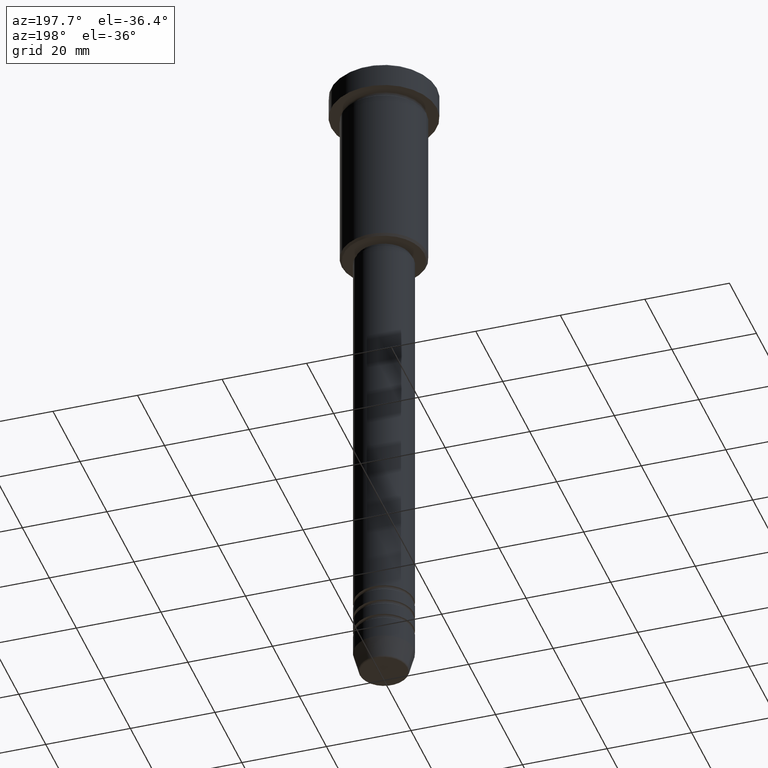
[diagram: clean part render]
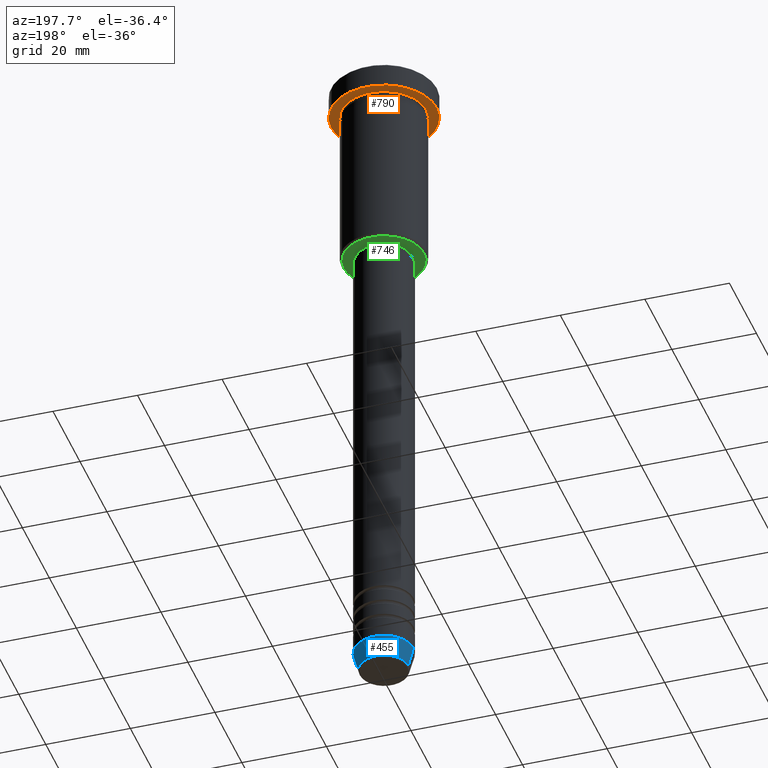
[diagram: same view with three faces highlighted in distinct colors, each labeled with its STEP entity id]
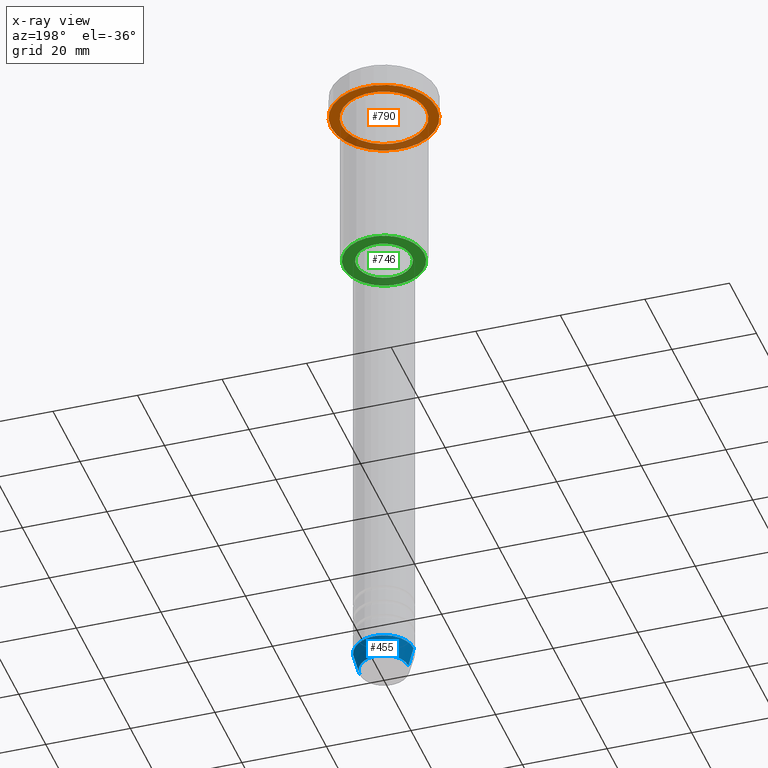
[diagram: x-ray of the same camera — body ghosted, the three highlighted faces saturated]
A machine part, auxiliary view with three faces highlighted in distinct colors.
The next image is the same camera in x-ray (body ghosted, the three faces saturated) — at least one of them is partly hidden behind the body in this view.
Their STEP definitions:

[orange] entity #790 — the highlighted planar face has unit normal (0, 0, -1).
#19 = CARTESIAN_POINT ( 'NONE',  ( 10.00000000000000000, 1.224646799147353256E-15, -5.999999999999996447 ) ) ;
#42 = VERTEX_POINT ( 'NONE', #341 ) ;
#109 = AXIS2_PLACEMENT_3D ( 'NONE', #806, #711, #1167 ) ;
#110 = CIRCLE ( 'NONE', #828, 10.00000000000000000 ) ;
#167 = CARTESIAN_POINT ( 'NONE',  ( 0.000000000000000000, 0.000000000000000000, -5.999999999999996447 ) ) ;
#183 = ORIENTED_EDGE ( 'NONE', *, *, #912, .T. ) ;
#184 = EDGE_LOOP ( 'NONE', ( #183, #512 ) ) ;
#186 = FACE_BOUND ( 'NONE', #184, .T. ) ;
#191 = AXIS2_PLACEMENT_3D ( 'NONE', #167, #526, #888 ) ;
#194 = DIRECTION ( 'NONE',  ( -1.000000000000000000, 0.000000000000000000, 0.000000000000000000 ) ) ;
#235 = VERTEX_POINT ( 'NONE', #554 ) ;
#340 = PLANE ( 'NONE',  #109 ) ;
#341 = CARTESIAN_POINT ( 'NONE',  ( 12.50000000000000000, 0.000000000000000000, -5.999999999999996447 ) ) ;
#353 = AXIS2_PLACEMENT_3D ( 'NONE', #500, #478, #840 ) ;
#400 = CARTESIAN_POINT ( 'NONE',  ( -12.50000000000000000, 1.530808498934191521E-15, -5.999999999999996447 ) ) ;
#425 = ORIENTED_EDGE ( 'NONE', *, *, #802, .F. ) ;
#433 = CIRCLE ( 'NONE', #353, 12.50000000000000000 ) ;
#436 = FACE_OUTER_BOUND ( 'NONE', #471, .T. ) ;
#471 = EDGE_LOOP ( 'NONE', ( #425, #634 ) ) ;
#478 = DIRECTION ( 'NONE',  ( -0.000000000000000000, -0.000000000000000000, 1.000000000000000000 ) ) ;
#500 = CARTESIAN_POINT ( 'NONE',  ( 0.000000000000000000, 0.000000000000000000, -5.999999999999996447 ) ) ;
#512 = ORIENTED_EDGE ( 'NONE', *, *, #997, .T. ) ;
#526 = DIRECTION ( 'NONE',  ( -0.000000000000000000, -0.000000000000000000, 1.000000000000000000 ) ) ;
#554 = CARTESIAN_POINT ( 'NONE',  ( -10.00000000000000000, 0.000000000000000000, -5.999999999999996447 ) ) ;
#587 = DIRECTION ( 'NONE',  ( -1.000000000000000000, 0.000000000000000000, 0.000000000000000000 ) ) ;
#634 = ORIENTED_EDGE ( 'NONE', *, *, #1046, .F. ) ;
#711 = DIRECTION ( 'NONE',  ( 0.000000000000000000, 0.000000000000000000, -1.000000000000000000 ) ) ;
#753 = DIRECTION ( 'NONE',  ( -0.000000000000000000, -0.000000000000000000, 1.000000000000000000 ) ) ;
#784 = DIRECTION ( 'NONE',  ( -0.000000000000000000, -0.000000000000000000, 1.000000000000000000 ) ) ;
#790 = ADVANCED_FACE ( 'NONE', ( #186, #436 ), #340, .T. ) ;
#802 = EDGE_CURVE ( 'NONE', #42, #1057, #928, .T. ) ;
#806 = CARTESIAN_POINT ( 'NONE',  ( 0.000000000000000000, 12.50000000000000000, -5.999999999999996447 ) ) ;
#823 = CARTESIAN_POINT ( 'NONE',  ( 0.000000000000000000, 0.000000000000000000, -5.999999999999996447 ) ) ;
#828 = AXIS2_PLACEMENT_3D ( 'NONE', #823, #753, #194 ) ;
#840 = DIRECTION ( 'NONE',  ( 1.000000000000000000, 0.000000000000000000, 0.000000000000000000 ) ) ;
#887 = CIRCLE ( 'NONE', #1083, 10.00000000000000000 ) ;
#888 = DIRECTION ( 'NONE',  ( 1.000000000000000000, 0.000000000000000000, 0.000000000000000000 ) ) ;
#912 = EDGE_CURVE ( 'NONE', #235, #959, #110, .T. ) ;
#928 = CIRCLE ( 'NONE', #191, 12.50000000000000000 ) ;
#959 = VERTEX_POINT ( 'NONE', #19 ) ;
#997 = EDGE_CURVE ( 'NONE', #959, #235, #887, .T. ) ;
#1035 = CARTESIAN_POINT ( 'NONE',  ( 0.000000000000000000, 0.000000000000000000, -5.999999999999996447 ) ) ;
#1046 = EDGE_CURVE ( 'NONE', #1057, #42, #433, .T. ) ;
#1057 = VERTEX_POINT ( 'NONE', #400 ) ;
#1083 = AXIS2_PLACEMENT_3D ( 'NONE', #1035, #784, #587 ) ;
#1167 = DIRECTION ( 'NONE',  ( -1.000000000000000000, 0.000000000000000000, -0.000000000000000000 ) ) ;

[blue] entity #455 — the highlighted conical surface has half-angle 15 deg.
#62 = EDGE_CURVE ( 'NONE', #974, #1047, #148, .T. ) ;
#73 = CIRCLE ( 'NONE', #228, 7.000000000000000000 ) ;
#105 = CARTESIAN_POINT ( 'NONE',  ( -7.000000000000000000, 8.572527594031473190E-16, -156.0000000000000284 ) ) ;
#117 = EDGE_CURVE ( 'NONE', #1047, #120, #1106, .T. ) ;
#120 = VERTEX_POINT ( 'NONE', #105 ) ;
#131 = DIRECTION ( 'NONE',  ( 1.000000000000000000, 0.000000000000000000, 0.000000000000000000 ) ) ;
#148 = CIRCLE ( 'NONE', #793, 5.759553456999435994 ) ;
#228 = AXIS2_PLACEMENT_3D ( 'NONE', #1094, #411, #131 ) ;
#239 = ORIENTED_EDGE ( 'NONE', *, *, #1087, .F. ) ;
#284 = CARTESIAN_POINT ( 'NONE',  ( 0.000000000000000000, 0.000000000000000000, -156.0000000000000284 ) ) ;
#319 = ORIENTED_EDGE ( 'NONE', *, *, #1169, .F. ) ;
#349 = CONICAL_SURFACE ( 'NONE', #1065, 7.000000000000000000, 0.2617993877991500740 ) ;
#392 = CARTESIAN_POINT ( 'NONE',  ( -5.759553456999435994, 7.812973149831951773E-16, -160.6294095225512706 ) ) ;
#411 = DIRECTION ( 'NONE',  ( -0.000000000000000000, -0.000000000000000000, 1.000000000000000000 ) ) ;
#415 = ORIENTED_EDGE ( 'NONE', *, *, #62, .T. ) ;
#455 = ADVANCED_FACE ( 'NONE', ( #1105 ), #349, .T. ) ;
#556 = CARTESIAN_POINT ( 'NONE',  ( -7.000000000000000000, 8.572527594031473190E-16, -156.0000000000000284 ) ) ;
#576 = DIRECTION ( 'NONE',  ( 0.2588190451025213501, 0.000000000000000000, 0.9659258262890680902 ) ) ;
#652 = DIRECTION ( 'NONE',  ( 1.000000000000000000, 0.000000000000000000, 0.000000000000000000 ) ) ;
#657 = DIRECTION ( 'NONE',  ( -0.2588190451025213501, 3.169619151431772337E-17, 0.9659258262890680902 ) ) ;
#667 = VECTOR ( 'NONE', #576, 1000.000000000000000 ) ;
#697 = LINE ( 'NONE', #1059, #667 ) ;
#710 = EDGE_LOOP ( 'NONE', ( #415, #954, #319, #239 ) ) ;
#735 = VECTOR ( 'NONE', #657, 1000.000000000000000 ) ;
#793 = AXIS2_PLACEMENT_3D ( 'NONE', #817, #880, #889 ) ;
#816 = CARTESIAN_POINT ( 'NONE',  ( 5.759553456999435994, 0.000000000000000000, -160.6294095225512706 ) ) ;
#817 = CARTESIAN_POINT ( 'NONE',  ( 0.000000000000000000, 0.000000000000000000, -160.6294095225512706 ) ) ;
#880 = DIRECTION ( 'NONE',  ( -0.000000000000000000, -0.000000000000000000, 1.000000000000000000 ) ) ;
#889 = DIRECTION ( 'NONE',  ( 1.000000000000000000, 0.000000000000000000, 0.000000000000000000 ) ) ;
#954 = ORIENTED_EDGE ( 'NONE', *, *, #117, .T. ) ;
#974 = VERTEX_POINT ( 'NONE', #816 ) ;
#1001 = VERTEX_POINT ( 'NONE', #1054 ) ;
#1019 = DIRECTION ( 'NONE',  ( -0.000000000000000000, -0.000000000000000000, 1.000000000000000000 ) ) ;
#1047 = VERTEX_POINT ( 'NONE', #392 ) ;
#1054 = CARTESIAN_POINT ( 'NONE',  ( 7.000000000000000000, 0.000000000000000000, -156.0000000000000284 ) ) ;
#1059 = CARTESIAN_POINT ( 'NONE',  ( 7.000000000000000000, 0.000000000000000000, -156.0000000000000284 ) ) ;
#1065 = AXIS2_PLACEMENT_3D ( 'NONE', #284, #1019, #652 ) ;
#1087 = EDGE_CURVE ( 'NONE', #974, #1001, #697, .T. ) ;
#1094 = CARTESIAN_POINT ( 'NONE',  ( 0.000000000000000000, 0.000000000000000000, -156.0000000000000284 ) ) ;
#1105 = FACE_OUTER_BOUND ( 'NONE', #710, .T. ) ;
#1106 = LINE ( 'NONE', #556, #735 ) ;
#1169 = EDGE_CURVE ( 'NONE', #1001, #120, #73, .T. ) ;

[green] entity #746 — the highlighted planar face has unit normal (0, 0, -1).
#9 = DIRECTION ( 'NONE',  ( 0.000000000000000000, 0.000000000000000000, -1.000000000000000000 ) ) ;
#26 = DIRECTION ( 'NONE',  ( 1.000000000000000000, 0.000000000000000000, 0.000000000000000000 ) ) ;
#66 = EDGE_CURVE ( 'NONE', #1132, #891, #1116, .T. ) ;
#68 = DIRECTION ( 'NONE',  ( -1.000000000000000000, 0.000000000000000000, -0.000000000000000000 ) ) ;
#91 = CIRCLE ( 'NONE', #156, 9.499999999999966249 ) ;
#103 = CARTESIAN_POINT ( 'NONE',  ( 9.499999999999966249, 0.000000000000000000, -46.00000000000001421 ) ) ;
#156 = AXIS2_PLACEMENT_3D ( 'NONE', #1012, #9, #671 ) ;
#198 = DIRECTION ( 'NONE',  ( -0.000000000000000000, -0.000000000000000000, 1.000000000000000000 ) ) ;
#251 = VERTEX_POINT ( 'NONE', #103 ) ;
#266 = FACE_OUTER_BOUND ( 'NONE', #936, .T. ) ;
#271 = FACE_BOUND ( 'NONE', #768, .T. ) ;
#283 = CARTESIAN_POINT ( 'NONE',  ( -6.500000000000000000, 7.960204194457795477E-16, -46.00000000000000711 ) ) ;
#444 = DIRECTION ( 'NONE',  ( 0.000000000000000000, 0.000000000000000000, -1.000000000000000000 ) ) ;
#479 = DIRECTION ( 'NONE',  ( -0.000000000000000000, -0.000000000000000000, 1.000000000000000000 ) ) ;
#613 = PLANE ( 'NONE',  #705 ) ;
#654 = ORIENTED_EDGE ( 'NONE', *, *, #750, .T. ) ;
#666 = ORIENTED_EDGE ( 'NONE', *, *, #1092, .T. ) ;
#671 = DIRECTION ( 'NONE',  ( -1.000000000000000000, 0.000000000000000000, 0.000000000000000000 ) ) ;
#705 = AXIS2_PLACEMENT_3D ( 'NONE', #799, #1088, #68 ) ;
#726 = VERTEX_POINT ( 'NONE', #1181 ) ;
#729 = ORIENTED_EDGE ( 'NONE', *, *, #66, .T. ) ;
#746 = ADVANCED_FACE ( 'NONE', ( #266, #271 ), #613, .T. ) ;
#750 = EDGE_CURVE ( 'NONE', #251, #726, #826, .T. ) ;
#768 = EDGE_LOOP ( 'NONE', ( #902, #729 ) ) ;
#799 = CARTESIAN_POINT ( 'NONE',  ( 0.000000000000000000, 10.00000000000000000, -46.00000000000001421 ) ) ;
#804 = CARTESIAN_POINT ( 'NONE',  ( 0.000000000000000000, 0.000000000000000000, -46.00000000000000711 ) ) ;
#812 = CIRCLE ( 'NONE', #1067, 6.500000000000000000 ) ;
#826 = CIRCLE ( 'NONE', #1004, 9.499999999999966249 ) ;
#834 = CARTESIAN_POINT ( 'NONE',  ( 0.000000000000000000, 0.000000000000000000, -46.00000000000000711 ) ) ;
#886 = EDGE_CURVE ( 'NONE', #891, #1132, #812, .T. ) ;
#891 = VERTEX_POINT ( 'NONE', #1109 ) ;
#902 = ORIENTED_EDGE ( 'NONE', *, *, #886, .T. ) ;
#925 = AXIS2_PLACEMENT_3D ( 'NONE', #804, #479, #1103 ) ;
#936 = EDGE_LOOP ( 'NONE', ( #654, #666 ) ) ;
#980 = DIRECTION ( 'NONE',  ( -1.000000000000000000, 0.000000000000000000, 0.000000000000000000 ) ) ;
#1004 = AXIS2_PLACEMENT_3D ( 'NONE', #1159, #444, #980 ) ;
#1012 = CARTESIAN_POINT ( 'NONE',  ( 0.000000000000000000, 0.000000000000000000, -46.00000000000001421 ) ) ;
#1067 = AXIS2_PLACEMENT_3D ( 'NONE', #834, #198, #26 ) ;
#1088 = DIRECTION ( 'NONE',  ( 0.000000000000000000, 0.000000000000000000, -1.000000000000000000 ) ) ;
#1092 = EDGE_CURVE ( 'NONE', #726, #251, #91, .T. ) ;
#1103 = DIRECTION ( 'NONE',  ( 1.000000000000000000, 0.000000000000000000, 0.000000000000000000 ) ) ;
#1109 = CARTESIAN_POINT ( 'NONE',  ( 6.500000000000000000, 0.000000000000000000, -46.00000000000000711 ) ) ;
#1116 = CIRCLE ( 'NONE', #925, 6.500000000000000000 ) ;
#1132 = VERTEX_POINT ( 'NONE', #283 ) ;
#1159 = CARTESIAN_POINT ( 'NONE',  ( 0.000000000000000000, 0.000000000000000000, -46.00000000000001421 ) ) ;
#1181 = CARTESIAN_POINT ( 'NONE',  ( -9.499999999999966249, 1.194030629168667300E-15, -46.00000000000001421 ) ) ;